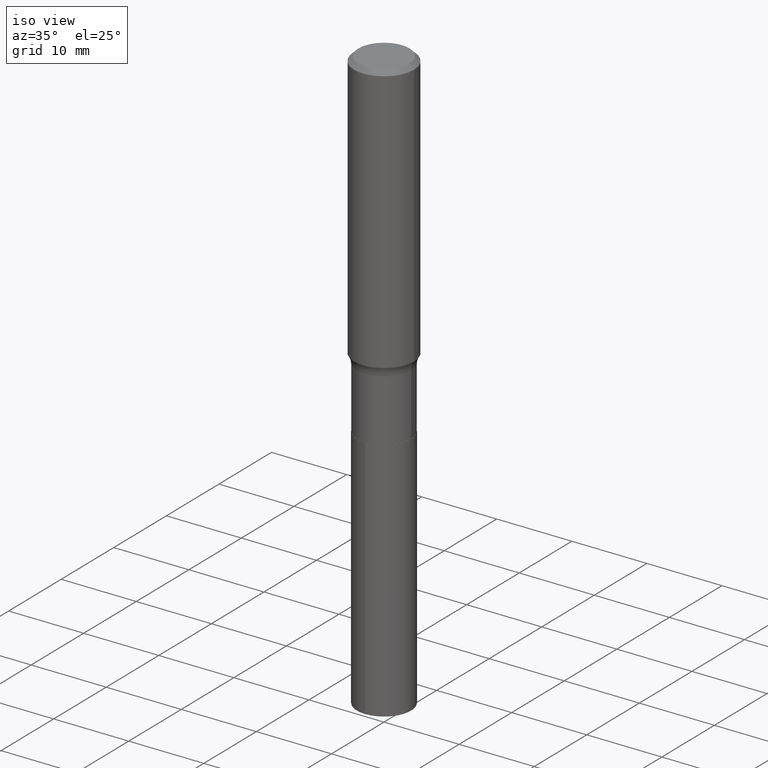
[diagram: clean part render]
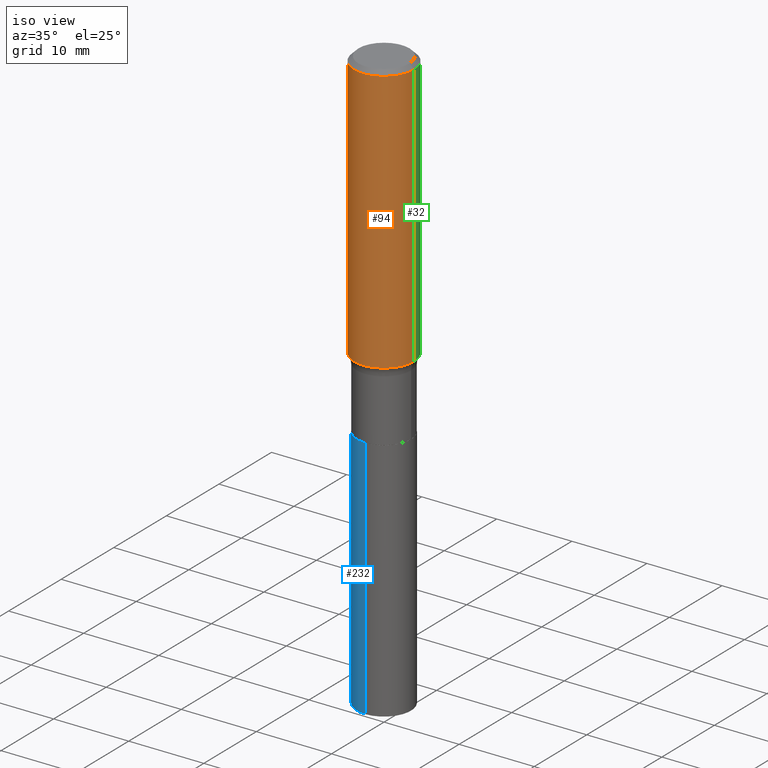
[diagram: same view with three faces highlighted in distinct colors, each labeled with its STEP entity id]
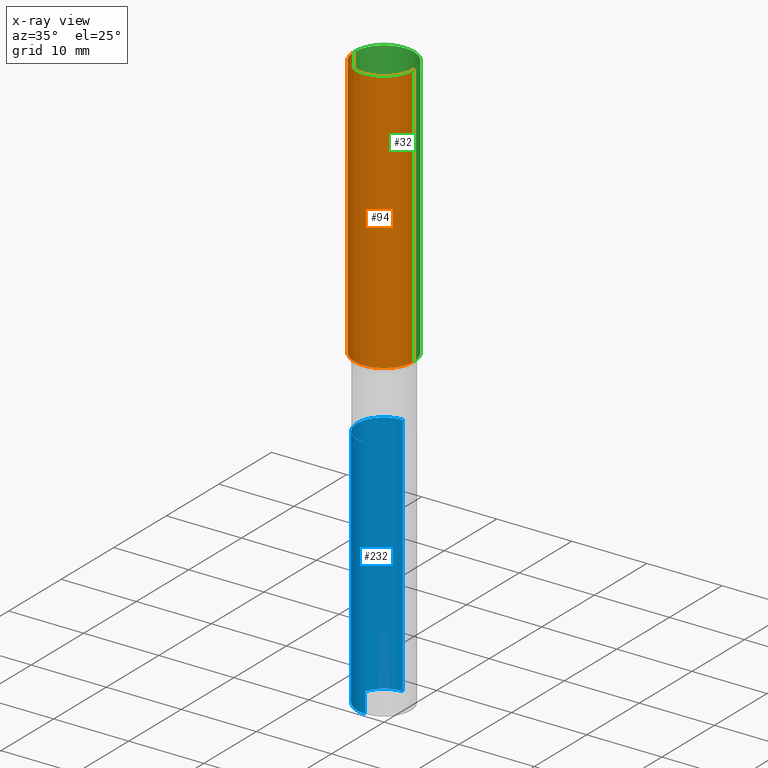
[diagram: x-ray of the same camera — body ghosted, the three highlighted faces saturated]
A machine part, iso view with three faces highlighted in distinct colors.
The next image is the same camera in x-ray (body ghosted, the three faces saturated) — at least one of them is partly hidden behind the body in this view.
Their STEP definitions:

[orange] entity #94 — the highlighted cylindrical surface (partial cylindrical patch) has radius 4.0005 mm, axis along (-0, 0, 1).
#3 = VERTEX_POINT ( 'NONE', #248 ) ;
#11 = DIRECTION ( 'NONE',  ( 1.000000000000000000, -6.982962677686268288E-15, 0.000000000000000000 ) ) ;
#18 = DIRECTION ( 'NONE',  ( -2.445468806185136597E-29, 3.491481338843145583E-15, 1.000000000000000000 ) ) ;
#52 = LINE ( 'NONE', #236, #233 ) ;
#55 = CIRCLE ( 'NONE', #237, 0.1575000000000000011 ) ;
#56 = CARTESIAN_POINT ( 'NONE',  ( 3.439553501887494675E-29, -4.910770824562959789E-15, -1.406500664898319819 ) ) ;
#57 = CARTESIAN_POINT ( 'NONE',  ( -0.1575000000000001676, -3.791666015740801396E-15, -1.406500664898319819 ) ) ;
#88 = EDGE_CURVE ( 'NONE', #379, #264, #293, .T. ) ;
#90 = DIRECTION ( 'NONE',  ( -2.445468806185136597E-29, 3.491481338843145583E-15, 1.000000000000000000 ) ) ;
#91 = DIRECTION ( 'NONE',  ( 1.000000000000000000, -6.982962677686265922E-15, 0.000000000000000000 ) ) ;
#94 = ADVANCED_FACE ( 'NONE', ( #184 ), #214, .T. ) ;
#104 = CARTESIAN_POINT ( 'NONE',  ( 0.000000000000000000, 0.000000000000000000, 0.000000000000000000 ) ) ;
#147 = CARTESIAN_POINT ( 'NONE',  ( -0.1575000000000000566, 1.119104808822158195E-15, -7.747322767151479787E-30 ) ) ;
#168 = ORIENTED_EDGE ( 'NONE', *, *, #436, .T. ) ;
#184 = FACE_OUTER_BOUND ( 'NONE', #347, .T. ) ;
#201 = CARTESIAN_POINT ( 'NONE',  ( 0.1575000000000000011, -1.182302868365756679E-15, -0.02362500000000014588 ) ) ;
#202 = AXIS2_PLACEMENT_3D ( 'NONE', #104, #283, #250 ) ;
#205 = DIRECTION ( 'NONE',  ( -2.445468806185136877E-29, 3.491481338843145188E-15, 1.000000000000000000 ) ) ;
#209 = AXIS2_PLACEMENT_3D ( 'NONE', #56, #18, #11 ) ;
#214 = CYLINDRICAL_SURFACE ( 'NONE', #202, 0.1575000000000000566 ) ;
#226 = ORIENTED_EDGE ( 'NONE', *, *, #409, .F. ) ;
#233 = VECTOR ( 'NONE', #205, 39.37007874015748143 ) ;
#236 = CARTESIAN_POINT ( 'NONE',  ( 0.1575000000000000566, -1.099816621735587480E-15, 7.679978421878602237E-30 ) ) ;
#237 = AXIS2_PLACEMENT_3D ( 'NONE', #352, #90, #91 ) ;
#248 = CARTESIAN_POINT ( 'NONE',  ( 0.1575000000000001676, -6.010587446298547269E-15, -1.406500664898319819 ) ) ;
#250 = DIRECTION ( 'NONE',  ( 1.000000000000000000, -6.982962677686267499E-15, 4.876176775795936353E-29 ) ) ;
#264 = VERTEX_POINT ( 'NONE', #381 ) ;
#283 = DIRECTION ( 'NONE',  ( -2.445468806185136597E-29, 3.491481338843145583E-15, 1.000000000000000000 ) ) ;
#291 = DIRECTION ( 'NONE',  ( -2.445468806185136877E-29, 3.491481338843145188E-15, 1.000000000000000000 ) ) ;
#293 = LINE ( 'NONE', #147, #442 ) ;
#318 = VERTEX_POINT ( 'NONE', #201 ) ;
#347 = EDGE_LOOP ( 'NONE', ( #400, #423, #168, #226 ) ) ;
#352 = CARTESIAN_POINT ( 'NONE',  ( 5.777420054612421104E-31, -8.248624663016984002E-17, -0.02362500000000014588 ) ) ;
#379 = VERTEX_POINT ( 'NONE', #57 ) ;
#380 = EDGE_CURVE ( 'NONE', #379, #3, #469, .T. ) ;
#381 = CARTESIAN_POINT ( 'NONE',  ( -0.1575000000000000011, -1.377523726774406595E-15, -0.02362500000000014588 ) ) ;
#400 = ORIENTED_EDGE ( 'NONE', *, *, #88, .F. ) ;
#409 = EDGE_CURVE ( 'NONE', #264, #318, #55, .T. ) ;
#423 = ORIENTED_EDGE ( 'NONE', *, *, #380, .T. ) ;
#436 = EDGE_CURVE ( 'NONE', #3, #318, #52, .T. ) ;
#442 = VECTOR ( 'NONE', #291, 39.37007874015748143 ) ;
#469 = CIRCLE ( 'NONE', #209, 0.1575000000000001399 ) ;

[blue] entity #232 — the highlighted cylindrical surface (edge-blend (fillet) strip) has radius 3.6004 mm, axis along (-0, 0, 1).
#41 = CARTESIAN_POINT ( 'NONE',  ( 1.007194327940016469E-15, 0.1417499999999892457, -3.065506396676405121 ) ) ;
#58 = VECTOR ( 'NONE', #153, 39.37007874015748143 ) ;
#66 = ORIENTED_EDGE ( 'NONE', *, *, #131, .T. ) ;
#93 = CARTESIAN_POINT ( 'NONE',  ( -9.898349595619846349E-16, -0.1417500000000062044, -1.779499999999999416 ) ) ;
#102 = VECTOR ( 'NONE', #319, 39.37007874015748143 ) ;
#108 = DIRECTION ( 'NONE',  ( -2.445422934702046879E-29, 3.491547029417772777E-15, 1.000000000000000000 ) ) ;
#131 = EDGE_CURVE ( 'NONE', #456, #383, #486, .T. ) ;
#153 = DIRECTION ( 'NONE',  ( -2.445422934702046879E-29, 3.491547029417773171E-15, 1.000000000000000000 ) ) ;
#158 = EDGE_LOOP ( 'NONE', ( #301, #350, #66, #490 ) ) ;
#159 = EDGE_CURVE ( 'NONE', #270, #456, #458, .T. ) ;
#167 = DIRECTION ( 'NONE',  ( -6.982962677686265133E-15, -1.000000000000000000, 3.854459250319948630E-15 ) ) ;
#172 = DIRECTION ( 'NONE',  ( -2.445422934702046879E-29, 3.491547029417772777E-15, 1.000000000000000000 ) ) ;
#173 = VERTEX_POINT ( 'NONE', #299 ) ;
#175 = CARTESIAN_POINT ( 'NONE',  ( 4.351711740606450879E-29, -6.213091042471377326E-15, -1.779499999999999860 ) ) ;
#182 = CARTESIAN_POINT ( 'NONE',  ( 7.496541277212469307E-29, -1.070324285659913330E-14, -3.065506396676404677 ) ) ;
#231 = DIRECTION ( 'NONE',  ( -6.982962677686265133E-15, -1.000000000000000000, 3.854459250319948630E-15 ) ) ;
#232 = ADVANCED_FACE ( 'NONE', ( #345 ), #309, .T. ) ;
#253 = DIRECTION ( 'NONE',  ( -6.982962677686265133E-15, -1.000000000000000000, 3.854459250319948630E-15 ) ) ;
#270 = VERTEX_POINT ( 'NONE', #41 ) ;
#299 = CARTESIAN_POINT ( 'NONE',  ( 1.007194327940016864E-15, 0.1417499999999937699, -1.779500000000000526 ) ) ;
#301 = ORIENTED_EDGE ( 'NONE', *, *, #447, .F. ) ;
#309 = CYLINDRICAL_SURFACE ( 'NONE', #368, 0.1417499999999999871 ) ;
#312 = AXIS2_PLACEMENT_3D ( 'NONE', #182, #108, #253 ) ;
#319 = DIRECTION ( 'NONE',  ( -2.445422934702046879E-29, 3.491547029417773171E-15, 1.000000000000000000 ) ) ;
#334 = EDGE_CURVE ( 'NONE', #173, #383, #487, .T. ) ;
#345 = FACE_OUTER_BOUND ( 'NONE', #158, .T. ) ;
#350 = ORIENTED_EDGE ( 'NONE', *, *, #159, .T. ) ;
#354 = LINE ( 'NONE', #459, #102 ) ;
#363 = CARTESIAN_POINT ( 'NONE',  ( -9.898349595619846349E-16, -0.1417500000000062044, -1.779499999999999416 ) ) ;
#368 = AXIS2_PLACEMENT_3D ( 'NONE', #386, #421, #231 ) ;
#383 = VERTEX_POINT ( 'NONE', #93 ) ;
#386 = CARTESIAN_POINT ( 'NONE',  ( 4.351711740606450879E-29, -6.213091042471377326E-15, -1.779499999999999860 ) ) ;
#391 = AXIS2_PLACEMENT_3D ( 'NONE', #175, #172, #167 ) ;
#421 = DIRECTION ( 'NONE',  ( -2.445422934702046879E-29, 3.491547029417772777E-15, 1.000000000000000000 ) ) ;
#431 = CARTESIAN_POINT ( 'NONE',  ( -9.898349595619528832E-16, -0.1417500000000106453, -3.065506396676404233 ) ) ;
#447 = EDGE_CURVE ( 'NONE', #270, #173, #354, .T. ) ;
#456 = VERTEX_POINT ( 'NONE', #431 ) ;
#458 = CIRCLE ( 'NONE', #312, 0.1417499999999999871 ) ;
#459 = CARTESIAN_POINT ( 'NONE',  ( 1.007194327939985309E-15, 0.1417499999999937699, -1.779500000000000526 ) ) ;
#486 = LINE ( 'NONE', #363, #58 ) ;
#487 = CIRCLE ( 'NONE', #391, 0.1417499999999999871 ) ;
#490 = ORIENTED_EDGE ( 'NONE', *, *, #334, .F. ) ;

[green] entity #32 — the highlighted cylindrical surface (partial cylindrical patch) has radius 4.0005 mm, axis along (-0, 0, 1).
#3 = VERTEX_POINT ( 'NONE', #248 ) ;
#10 = EDGE_CURVE ( 'NONE', #3, #379, #303, .T. ) ;
#13 = ORIENTED_EDGE ( 'NONE', *, *, #88, .T. ) ;
#32 = ADVANCED_FACE ( 'NONE', ( #222 ), #439, .T. ) ;
#34 = CARTESIAN_POINT ( 'NONE',  ( 0.000000000000000000, 0.000000000000000000, 0.000000000000000000 ) ) ;
#52 = LINE ( 'NONE', #236, #233 ) ;
#57 = CARTESIAN_POINT ( 'NONE',  ( -0.1575000000000001676, -3.791666015740801396E-15, -1.406500664898319819 ) ) ;
#88 = EDGE_CURVE ( 'NONE', #379, #264, #293, .T. ) ;
#98 = AXIS2_PLACEMENT_3D ( 'NONE', #329, #475, #144 ) ;
#111 = DIRECTION ( 'NONE',  ( -2.445468806185136597E-29, 3.491481338843145583E-15, 1.000000000000000000 ) ) ;
#125 = CIRCLE ( 'NONE', #98, 0.1575000000000000011 ) ;
#144 = DIRECTION ( 'NONE',  ( 1.000000000000000000, -6.982962677686265922E-15, 0.000000000000000000 ) ) ;
#145 = EDGE_CURVE ( 'NONE', #318, #264, #125, .T. ) ;
#147 = CARTESIAN_POINT ( 'NONE',  ( -0.1575000000000000566, 1.119104808822158195E-15, -7.747322767151479787E-30 ) ) ;
#171 = AXIS2_PLACEMENT_3D ( 'NONE', #34, #259, #296 ) ;
#191 = ORIENTED_EDGE ( 'NONE', *, *, #145, .F. ) ;
#201 = CARTESIAN_POINT ( 'NONE',  ( 0.1575000000000000011, -1.182302868365756679E-15, -0.02362500000000014588 ) ) ;
#205 = DIRECTION ( 'NONE',  ( -2.445468806185136877E-29, 3.491481338843145188E-15, 1.000000000000000000 ) ) ;
#222 = FACE_OUTER_BOUND ( 'NONE', #370, .T. ) ;
#233 = VECTOR ( 'NONE', #205, 39.37007874015748143 ) ;
#236 = CARTESIAN_POINT ( 'NONE',  ( 0.1575000000000000566, -1.099816621735587480E-15, 7.679978421878602237E-30 ) ) ;
#240 = ORIENTED_EDGE ( 'NONE', *, *, #10, .T. ) ;
#248 = CARTESIAN_POINT ( 'NONE',  ( 0.1575000000000001676, -6.010587446298547269E-15, -1.406500664898319819 ) ) ;
#259 = DIRECTION ( 'NONE',  ( -2.445468806185136597E-29, 3.491481338843145583E-15, 1.000000000000000000 ) ) ;
#264 = VERTEX_POINT ( 'NONE', #381 ) ;
#288 = DIRECTION ( 'NONE',  ( 1.000000000000000000, -6.982962677686268288E-15, 0.000000000000000000 ) ) ;
#291 = DIRECTION ( 'NONE',  ( -2.445468806185136877E-29, 3.491481338843145188E-15, 1.000000000000000000 ) ) ;
#293 = LINE ( 'NONE', #147, #442 ) ;
#296 = DIRECTION ( 'NONE',  ( 1.000000000000000000, -6.982962677686267499E-15, 4.876176775795936353E-29 ) ) ;
#303 = CIRCLE ( 'NONE', #358, 0.1575000000000001399 ) ;
#313 = ORIENTED_EDGE ( 'NONE', *, *, #436, .F. ) ;
#318 = VERTEX_POINT ( 'NONE', #201 ) ;
#329 = CARTESIAN_POINT ( 'NONE',  ( 5.777420054612421104E-31, -8.248624663016984002E-17, -0.02362500000000014588 ) ) ;
#358 = AXIS2_PLACEMENT_3D ( 'NONE', #371, #111, #288 ) ;
#370 = EDGE_LOOP ( 'NONE', ( #240, #13, #191, #313 ) ) ;
#371 = CARTESIAN_POINT ( 'NONE',  ( 3.439553501887494675E-29, -4.910770824562959789E-15, -1.406500664898319819 ) ) ;
#379 = VERTEX_POINT ( 'NONE', #57 ) ;
#381 = CARTESIAN_POINT ( 'NONE',  ( -0.1575000000000000011, -1.377523726774406595E-15, -0.02362500000000014588 ) ) ;
#436 = EDGE_CURVE ( 'NONE', #3, #318, #52, .T. ) ;
#439 = CYLINDRICAL_SURFACE ( 'NONE', #171, 0.1575000000000000566 ) ;
#442 = VECTOR ( 'NONE', #291, 39.37007874015748143 ) ;
#475 = DIRECTION ( 'NONE',  ( -2.445468806185136597E-29, 3.491481338843145583E-15, 1.000000000000000000 ) ) ;